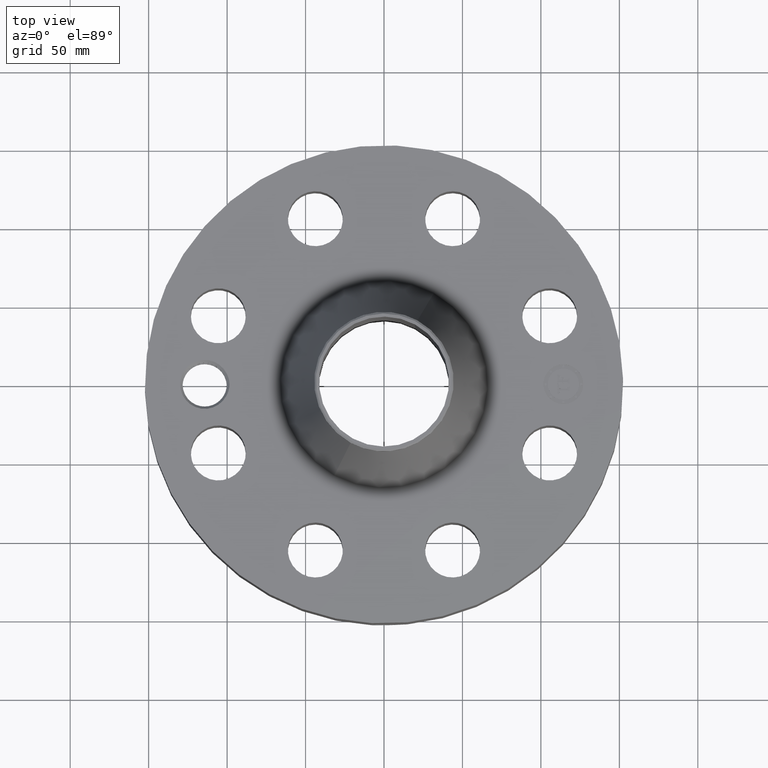
[diagram: clean part render]
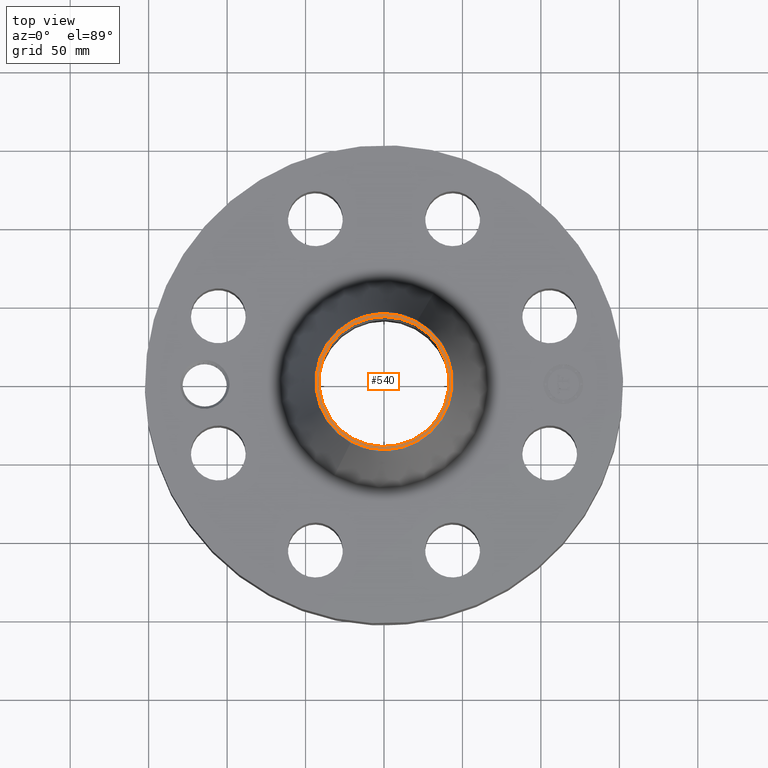
[diagram: same view with one face highlighted and labeled with its STEP entity id]
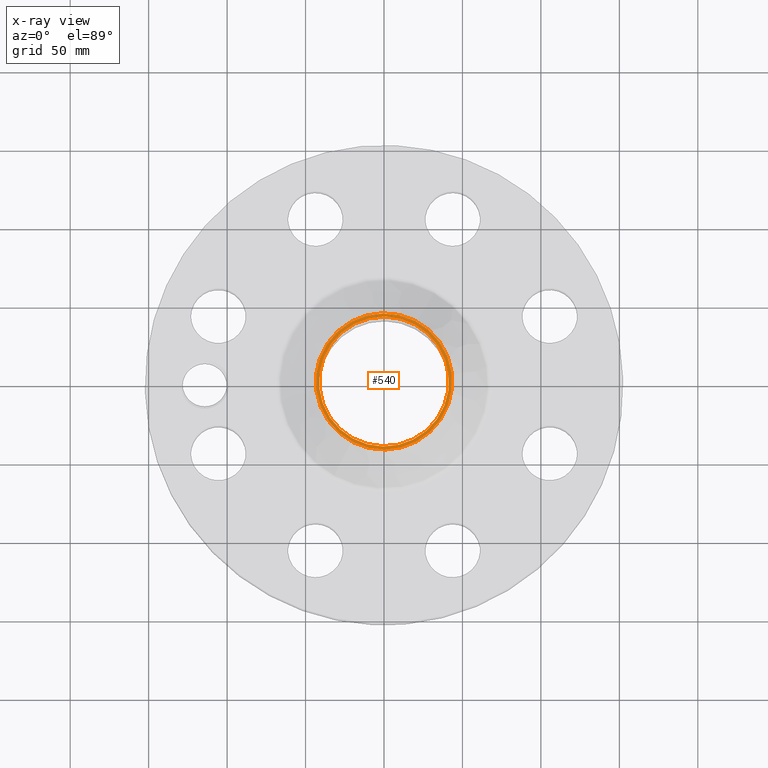
[diagram: x-ray of the same camera — body ghosted, the highlighted face saturated]
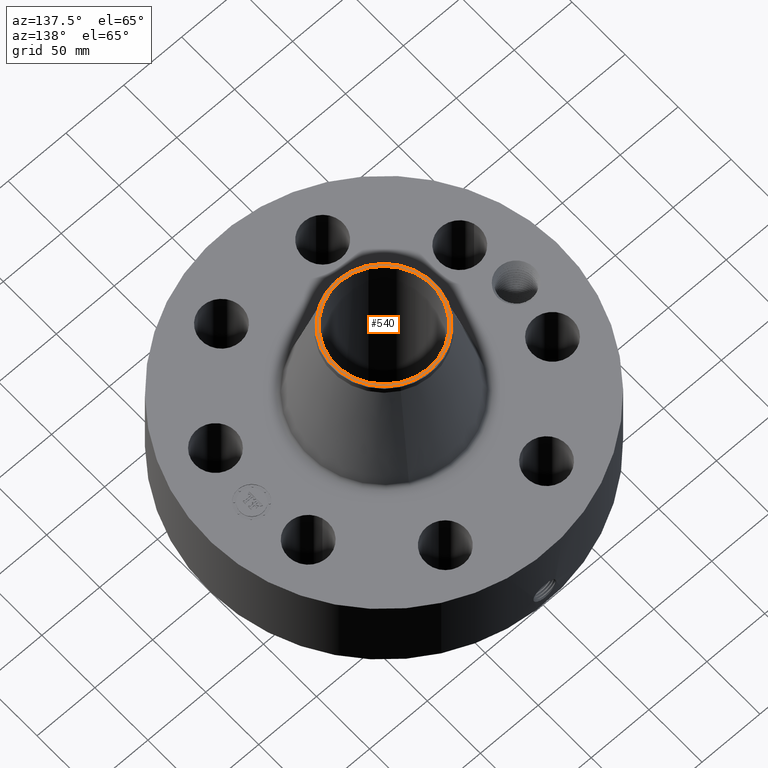
[diagram: same view with one face highlighted and labeled with its STEP entity id]
A machine part, top view. The second image highlights one B-rep face of the part: STEP entity #540.
The next image is the same camera in x-ray: the body ghosted, the highlighted face saturated — about 0% of this face is hidden behind the body in this view.
A second angle (auxiliary view) of the same face is appended — the face is thin or edge-on in the first view.
In plain terms, the highlighted planar face has unit normal (0, 0, -1).
Its self-contained STEP definition (entity closure, byte-faithful):
#236=AXIS2_PLACEMENT_3D('Circle Axis2P3D',#234,#235,$) ;
#511=AXIS2_PLACEMENT_3D('Plane Axis2P3D',#508,#509,#510) ;
#515=AXIS2_PLACEMENT_3D('Circle Axis2P3D',#513,#514,$) ;
#524=AXIS2_PLACEMENT_3D('Circle Axis2P3D',#522,#523,$) ;
#533=AXIS2_PLACEMENT_3D('Circle Axis2P3D',#531,#532,$) ;
#234=CARTESIAN_POINT('Axis2P3D Location',(0.,0.,6.99500000003)) ;
#238=CARTESIAN_POINT('Vertex',(0.781463627928,1.43045957589,6.99500000003)) ;
#240=CARTESIAN_POINT('Vertex',(-0.781463627928,-1.43045957589,6.99500000003)) ;
#508=CARTESIAN_POINT('Axis2P3D Location',(0.,1.75000000001,6.99500000003)) ;
#513=CARTESIAN_POINT('Axis2P3D Location',(0.,0.,6.99500000003)) ;
#517=CARTESIAN_POINT('Vertex',(0.819213670338,-1.49956056501,6.99500000003)) ;
#519=CARTESIAN_POINT('Vertex',(-0.819213670338,1.49956056501,6.99500000003)) ;
#522=CARTESIAN_POINT('Axis2P3D Location',(0.,0.,6.99500000003)) ;
#531=CARTESIAN_POINT('Axis2P3D Location',(0.,0.,6.99500000003)) ;
#235=DIRECTION('Axis2P3D Direction',(0.,0.,-0.0393700787402)) ;
#509=DIRECTION('Axis2P3D Direction',(0.,0.,-0.0393700787402)) ;
#510=DIRECTION('Axis2P3D XDirection',(0.0393700787402,0.,0.)) ;
#514=DIRECTION('Axis2P3D Direction',(0.,0.,-0.0393700787402)) ;
#523=DIRECTION('Axis2P3D Direction',(0.,0.,-0.0393700787402)) ;
#532=DIRECTION('Axis2P3D Direction',(0.,0.,-0.0393700787402)) ;
#528=ORIENTED_EDGE('',*,*,#521,.T.) ;
#529=ORIENTED_EDGE('',*,*,#526,.T.) ;
#537=ORIENTED_EDGE('',*,*,#535,.T.) ;
#538=ORIENTED_EDGE('',*,*,#242,.T.) ;
#539=FACE_BOUND('',#536,.T.) ;
#540=ADVANCED_FACE('PartBody',(#530,#539),#512,.F.) ;
#237=CIRCLE('generated circle',#236,1.63000000001) ;
#516=CIRCLE('generated circle',#515,1.70874015749) ;
#525=CIRCLE('generated circle',#524,1.70874015749) ;
#534=CIRCLE('generated circle',#533,1.63000000001) ;
#242=EDGE_CURVE('',#239,#241,#237,.T.) ;
#521=EDGE_CURVE('',#518,#520,#516,.F.) ;
#526=EDGE_CURVE('',#520,#518,#525,.F.) ;
#535=EDGE_CURVE('',#241,#239,#534,.T.) ;
#527=EDGE_LOOP('',(#528,#529)) ;
#536=EDGE_LOOP('',(#537,#538)) ;
#530=FACE_OUTER_BOUND('',#527,.T.) ;
#512=PLANE('',#511) ;
#239=VERTEX_POINT('',#238) ;
#241=VERTEX_POINT('',#240) ;
#518=VERTEX_POINT('',#517) ;
#520=VERTEX_POINT('',#519) ;